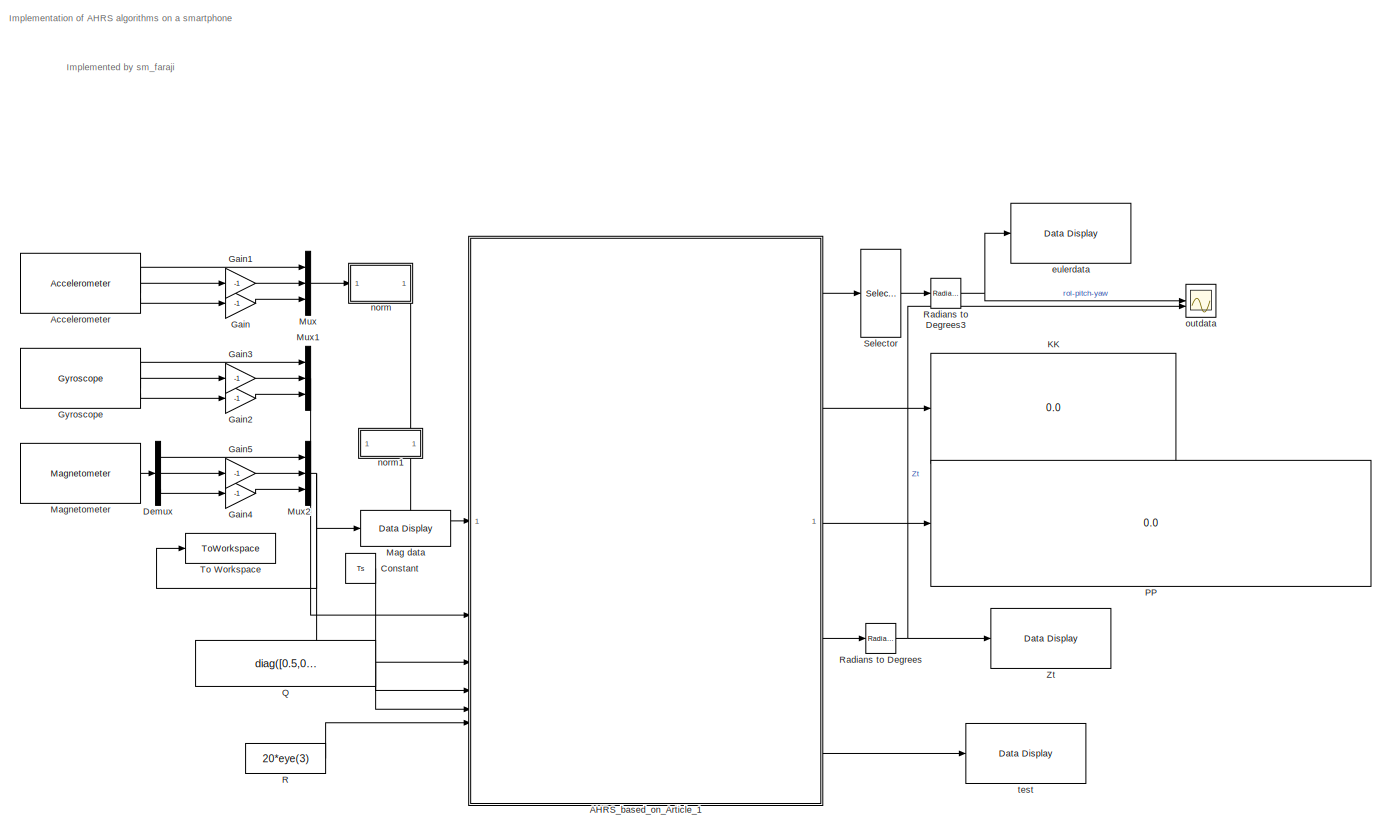
[diagram: root canvas - part 1/2, center side, full height]
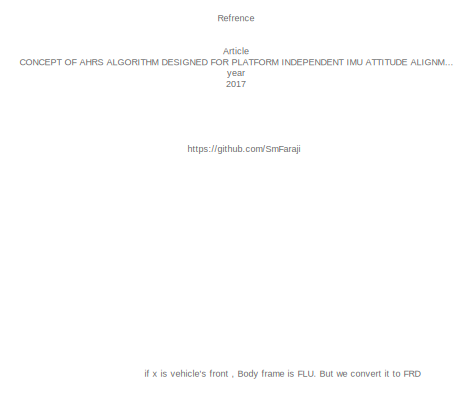
[diagram: root canvas - part 2/2, top left region]
MODEL slx_287ee3ad20ea
KIND model
CONFIG AbsTol = auto
CONFIG EnableMultiTasking = off
CONFIG FixedStep = Ts
CONFIG InitFcn = Ts = 0.02
CONFIG MaxStep = auto
CONFIG MinStep = auto
CONFIG RelTol = 1e-3
CONFIG SampleTimeConstraint = Unconstrained
CONFIG SolverName = FixedStepAuto
CONFIG StartTime = 0.0
CONFIG StopTime = inf
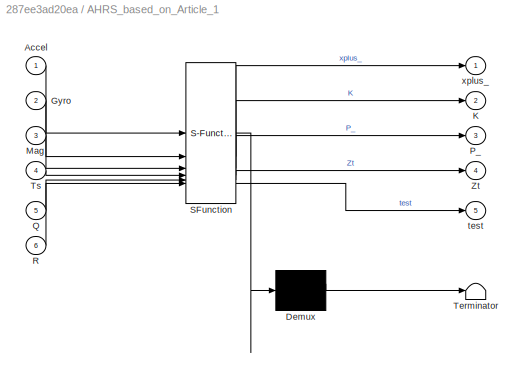
BLOCK [SubSystem] AHRS_based_on_Article_1
  ErrorFcn = Stateflow.Translate.translate
  LibrarySourceBlock = simulink/User-Defined\nFunctions/MATLAB Function
  PermitHierarchicalResolution = ExplicitOnly
  SFBlockType = MATLAB Function
  TreatAsAtomicUnit = on
BLOCK [Demux] AHRS_based_on_Article_1/ Demux 
  Outputs = 1
BLOCK [S-Function] AHRS_based_on_Article_1/ SFunction 
  EnableBusSupport = on
  FunctionName = sf_sfun
  PortCounts = [6 6]
  SFcnIsStateOwnerBlock = off
  SFunctionDeploymentMode = off
  Tag = Stateflow S-Function 2
BLOCK [Terminator] AHRS_based_on_Article_1/ Terminator 
BLOCK [Inport] AHRS_based_on_Article_1/Accel
BLOCK [Inport] AHRS_based_on_Article_1/Gyro
  Port = 2
BLOCK [Outport] AHRS_based_on_Article_1/K
  Port = 2
BLOCK [Inport] AHRS_based_on_Article_1/Mag
  Port = 3
BLOCK [Outport] AHRS_based_on_Article_1/P_
  Port = 3
BLOCK [Inport] AHRS_based_on_Article_1/Q
  Port = 5
BLOCK [Inport] AHRS_based_on_Article_1/R
  Port = 6
BLOCK [Inport] AHRS_based_on_Article_1/Ts
  Port = 4
BLOCK [Outport] AHRS_based_on_Article_1/Zt
  Port = 4
BLOCK [Outport] AHRS_based_on_Article_1/test
  Port = 5
BLOCK [Outport] AHRS_based_on_Article_1/xplus_
BLOCK [Reference] Accelerometer  REF=androidsensorlib/Accelerometer
  SourceBlock = androidsensorlib/Accelerometer
  SourceType = codertarget.internal.androidAccelerometer
BLOCK [Constant] Constant
  Value = Ts
BLOCK [Demux] Demux
  Outputs = 3
BLOCK [Gain] Gain
  Gain = -1
BLOCK [Gain] Gain1
  Gain = -1
BLOCK [Gain] Gain2
  Gain = -1
BLOCK [Gain] Gain3
  Gain = -1
BLOCK [Gain] Gain4
  Gain = -1
BLOCK [Gain] Gain5
  Gain = -1
BLOCK [Reference] Gyroscope  REF=androidsensorlib/Gyroscope
  SourceBlock = androidsensorlib/Gyroscope
  SourceType = codertarget.internal.androidGyroscope
BLOCK [Display] KK
  Commented = on
  Decimation = 1
BLOCK [Reference] Mag data  REF=androiduilib/Data Display
  SourceBlock = androiduilib/Data Display
  SourceType = codertarget.internal.androidDataDisplay
BLOCK [Reference] Magnetometer  REF=androidsensorlib/Magnetometer
  SourceBlock = androidsensorlib/Magnetometer
  SourceType = codertarget.internal.androidMagnetometer
BLOCK [Mux] Mux
  DisplayOption = bar
  Inputs = 3
BLOCK [Mux] Mux1
  DisplayOption = bar
  Inputs = 3
BLOCK [Mux] Mux2
  DisplayOption = bar
  Inputs = 3
BLOCK [Display] PP
  Commented = on
  Decimation = 1
BLOCK [Constant] Q
  Value = diag([0.5,0.5,0.5,0.05,0.05,0.05])
BLOCK [Constant] R
  Value = 20*eye(3)
BLOCK [Reference] Radians to Degrees  REF=simulink_extras/Transformations/Radians
to Degrees
  SourceBlock = simulink_extras/Transformations/Radians\nto Degrees
  SourceType = RadiansToDegrees
BLOCK [Reference] Radians to Degrees3  REF=simulink_extras/Transformations/Radians
to Degrees
  SourceBlock = simulink_extras/Transformations/Radians\nto Degrees
  SourceType = RadiansToDegrees
BLOCK [Selector] Selector
  IndexOptions = Index vector (dialog)
  Indices = [1:3]
  InputPortWidth = 6
  OutputSizes = 1
BLOCK [ToWorkspace] To Workspace
  Commented = on
  FixptAsFi = on
  MaxDataPoints = inf
  SampleTime = Ts
  VariableName = magdata
BLOCK [Reference] Zt  REF=androiduilib/Data Display
  SourceBlock = androiduilib/Data Display
  SourceType = codertarget.internal.androidDataDisplay
BLOCK [Reference] eulerdata  REF=androiduilib/Data Display
  SourceBlock = androiduilib/Data Display
  SourceType = codertarget.internal.androidDataDisplay
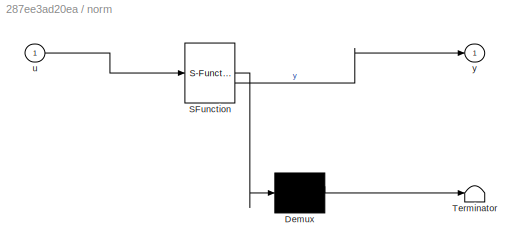
BLOCK [SubSystem] norm
  ErrorFcn = Stateflow.Translate.translate
  LibrarySourceBlock = simulink/User-Defined\nFunctions/MATLAB Function
  PermitHierarchicalResolution = ExplicitOnly
  SFBlockType = MATLAB Function
  TreatAsAtomicUnit = on
BLOCK [Demux] norm/ Demux 
  Outputs = 1
BLOCK [S-Function] norm/ SFunction 
  EnableBusSupport = on
  FunctionName = sf_sfun
  PortCounts = [1 2]
  SFcnIsStateOwnerBlock = off
  SFunctionDeploymentMode = off
  Tag = Stateflow S-Function 1
BLOCK [Terminator] norm/ Terminator 
BLOCK [Inport] norm/u
BLOCK [Outport] norm/y
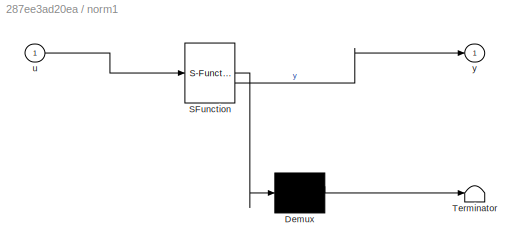
BLOCK [SubSystem] norm1
  Commented = on
  ErrorFcn = Stateflow.Translate.translate
  LibrarySourceBlock = simulink/User-Defined\nFunctions/MATLAB Function
  PermitHierarchicalResolution = ExplicitOnly
  SFBlockType = MATLAB Function
  TreatAsAtomicUnit = on
BLOCK [Demux] norm1/ Demux 
  Outputs = 1
BLOCK [S-Function] norm1/ SFunction 
  EnableBusSupport = on
  FunctionName = sf_sfun
  PortCounts = [1 2]
  SFcnIsStateOwnerBlock = off
  SFunctionDeploymentMode = off
  Tag = Stateflow S-Function 3
BLOCK [Terminator] norm1/ Terminator 
BLOCK [Inport] norm1/u
BLOCK [Outport] norm1/y
BLOCK [Scope] outdata
  Floating = off
  NumInputPorts = 2
  ScopeSpecificationString = Simulink.scopes.TimeScopeBlockCfg('CurrentConfiguration', extmgr.ConfigurationSet(extmgr.Configuration('Core','General UI',true),extmgr.Configuration('Core','Source UI',true),extmgr.Configuration('Sources','WiredSimulink',true,'SampleTime','Ts'),extmgr.Configuration('Visuals','Time Domain',true,'SerializedDisplays',{struct('MinYLimReal','-180','MaxYLimReal','180','YLabelReal','','MinYLimMag','0.00...<+1577ch>
BLOCK [Reference] test  REF=androiduilib/Data Display
  SourceBlock = androiduilib/Data Display
  SourceType = codertarget.internal.androidDataDisplay
ANNOTATION (root): Implemented by sm_faraji
ANNOTATION (root): Refrence
ANNOTATION (root): Implementation of AHRS algorithms on a smartphone
ANNOTATION (root): Article CONCEPT OF AHRS ALGORITHM DESIGNED FOR PLATFORM INDEPENDENT IMU ATTITUDE ALIGNMEN year 2017
ANNOTATION (root): https://github.com/SmFaraji
ANNOTATION (root): if x is vehicle's front , Body frame is FLU. But we convert it to FRD
LINE AHRS_based_on_Article_1:1 -> Selector:1
LINE AHRS_based_on_Article_1:2 -> KK:1
LINE AHRS_based_on_Article_1:3 -> PP:1
LINE AHRS_based_on_Article_1:4 -> Radians to Degrees:1
LINE AHRS_based_on_Article_1:5 -> test:1
LINE Accelerometer:1 -> Mux:1
LINE Accelerometer:2 -> Gain1:1
LINE Accelerometer:3 -> Gain:1
LINE Constant:1 -> AHRS_based_on_Article_1:4
LINE Demux:1 -> Mux2:1
LINE Demux:2 -> Gain5:1
LINE Demux:3 -> Gain4:1
LINE Gain1:1 -> Mux:2
LINE Gain2:1 -> Mux1:3
LINE Gain3:1 -> Mux1:2
LINE Gain4:1 -> Mux2:3
LINE Gain5:1 -> Mux2:2
LINE Gain:1 -> Mux:3
LINE Gyroscope:1 -> Mux1:1
LINE Gyroscope:2 -> Gain3:1
LINE Gyroscope:3 -> Gain2:1
LINE Magnetometer:1 -> Demux:1
LINE Mux1:1 -> AHRS_based_on_Article_1:2
NET Mux2:1 -> AHRS_based_on_Article_1:3, Mag data:1, To Workspace:1
LINE Mux:1 -> norm:1
LINE Q:1 -> AHRS_based_on_Article_1:5
LINE R:1 -> AHRS_based_on_Article_1:6
NET Radians to Degrees3:1 -> eulerdata:1, outdata:1
NET Radians to Degrees:1 -> Zt:1, outdata:2
LINE Selector:1 -> Radians to Degrees3:1
LINE norm:1 -> AHRS_based_on_Article_1:1
note: NET lines group one-source signal fan-out (src -> all destinations, sorted); 1:1 wires keep LINE
CHART norm states=1 transitions=1
  STATE_LABEL 'eML_blk_kernel()'
  STATE_LABEL "SCRIPT:\nfunction y = normV(u)\ny = normalize(u,'norm');"
CHART AHRS_based_on_Article_1 states=1 transitions=1
  STATE_LABEL 'eML_blk_kernel()'
  STATE_LABEL 'SCRIPT:\nfunction [xplus_,K,P_,Zt,test] = AHRS(Accel,Gyro,Mag,Ts,Q,R)\n\n\n\nA = [1, 0, 0, -Ts,   0,  0;\n     0, 1, 0,   0, -Ts,  0;\n     0, 0, 1,   0,   0,-Ts;\n     0, 0, 0,   1,   0,  0;\n     0, 0, 0,   0,   1,  0;\n     0, 0, 0,   0,   0,  1];\nB = [Ts, 0, 0;\n     0, Ts, 0;\n     0,  0,Ts;\n     0,  0, 0;\n     0,  0, 0;\n     0,  0, 0];\nC = [1, 0, 0, 0, 0, 0;\n     0, 1, 0, 0, 0, 0;\n     0, 0, 1, 0, 0, 0]...<+834ch>'
CHART norm1 states=1 transitions=1
  STATE_LABEL 'eML_blk_kernel()'
  STATE_LABEL "SCRIPT:\nfunction y = normV(u)\ny = normalize(u,'norm');"
CHART  states=0 transitions=0
CHART  states=0 transitions=0
CHART  states=0 transitions=0
